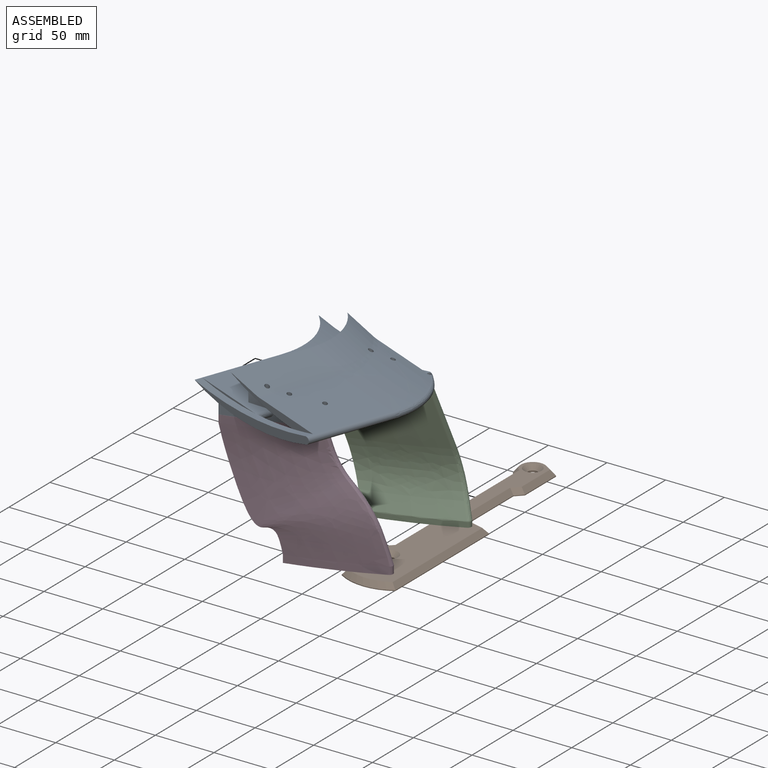
[diagram: assembled view]
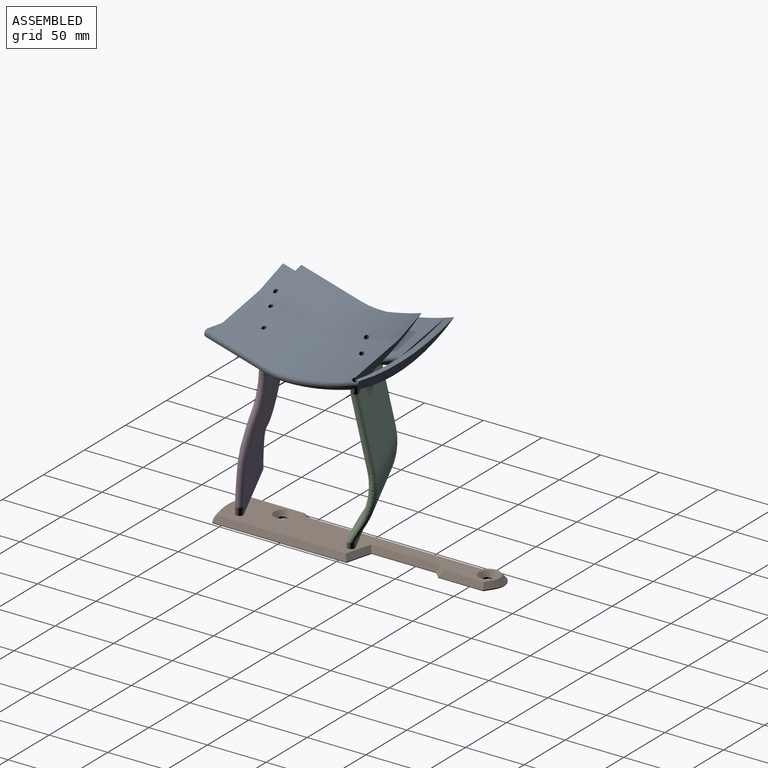
[diagram: assembled view, second angle]
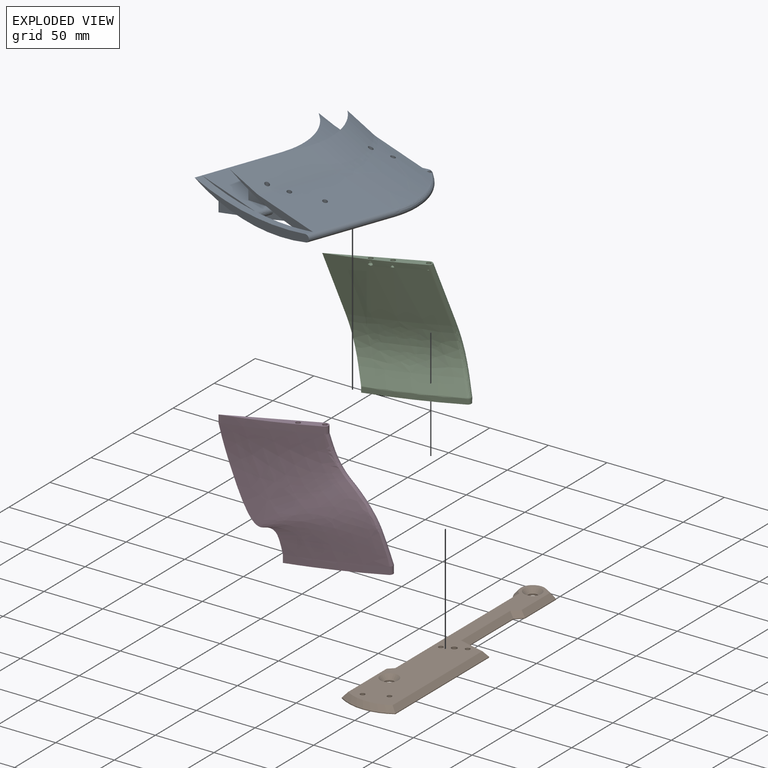
[diagram: exploded view]
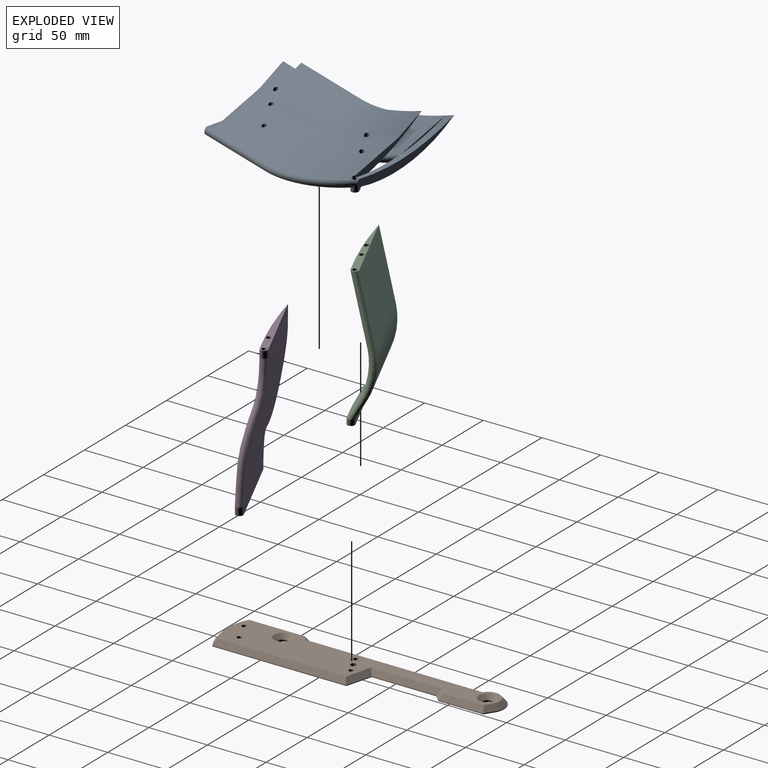
[diagram: exploded view, second angle]
ASSEMBLY  parts=4 mates=9
PART A: 59 faces, bbox 130.4x36.2x138.8 mm
  f0: bspline ~65.02x21.89mm, area 127.6mm2, adj f1,f24,f27,f32,f48
  f1: bspline ~65.02x64.14mm, area 134.3mm2, adj f0,f2,f48
  f2: plane 23.11x8.09mm, normal (0,0,1), area 17mm2, adj f1,f35,f48
  f3: plane 1.12x0.43mm, normal (0,0,1), area 0.2mm2, adj f8,f13,f14,f45
  f4: plane 72.09x27.29mm, normal (0,0,1), area 284.8mm2, adj f5,f6,f7,f8,f12,f45
  f5: bspline ~95.19x61.98mm, area 4944.9mm2, adj f4,f6,f19,f23,f37,f41,f42,f43
  f6: bspline ~61.98x42.99mm, area 1622.4mm2, adj f4,f5,f7,f20,f47
  f7: bspline ~61.98x23.76mm, area 269.6mm2, adj f4,f6,f8,f21,f47
  f8: bspline ~68.26x61.98mm, area 3128.2mm2, adj f3,f4,f7,f22,f23,f45,f46
  f9: bspline ~68.05x61.98mm, area 3126.1mm2, adj f10,f11,f16,f27,f30,f47
  f10: bspline ~34.02x23.21mm, area 190.2mm2, adj f9,f26,f30,f37,f43,f47,f54
  f11: bspline ~53.67x16.44mm, area 420.9mm2, adj f9,f28,f30,f41,f47,f55
  f12: bspline ~105.77x14.71mm, area 455.3mm2, adj f4,f14,f16,f37,f39,f40,f45
  f13: bspline ~1.13x0.42mm, area 0.1mm2, adj f3,f14,f45
  f14: bspline ~8.21x6.34mm, area 38mm2, adj f3,f12,f13,f23,f39,f42,f45
  f15: bspline ~7.9x4.38mm, area 0.4mm2, adj f39,f40,f42
  f16: plane 48.67x13.2mm, normal (0,0,1), area 53.9mm2, adj f9,f12
  f17: plane 76.34x27.31mm, normal (0,0,-1), area 288.7mm2, adj f19,f20,f21,f22,f34,f36
  f18: bspline ~65.02x21.21mm, area 700.8mm2, adj f19,f22,f23,f32,f36
  f19: bspline ~93.01x65.02mm, area 5052mm2, adj f5,f17,f18,f20,f32,f48,f49,f50
  f20: plane 65.49x41.28mm, normal (0.42,-0.9,-0.11), area 1674.7mm2, adj f6,f17,f19,f21,f56
  f21: bspline ~65.02x21.58mm, area 289.5mm2, adj f7,f17,f20,f22
  f22: plane 67.34x66.28mm, normal (0.26,-0.96,-0.07), area 3257.1mm2, adj f8,f17,f18,f21,f57,f58
  f23: bspline ~61.98x23.57mm, area 685.1mm2, adj f5,f8,f14,f18,f42
  f24: plane 0.55x0.12mm, normal (0,0,-1), area 0mm2, adj f0,f35
  f25: plane 48.67x13.2mm, normal (0,0,-1), area 53.8mm2, adj f27,f34
  f26: plane 0.55x0.12mm, normal (0,0,1), area 0mm2, adj f10,f40
  f27: plane 65.87x65.02mm, normal (0.26,-0.96,-0.07), area 3196.9mm2, adj f0,f9,f25,f28,f29,f48,f50,f53
  f28: bspline ~47.66x16.85mm, area 468.4mm2, adj f11,f27,f29,f50
  f29: bspline ~65.02x64.14mm, area 3069.2mm2, adj f27,f28,f30,f31,f50
  f30: bspline ~66.29x61.98mm, area 3101.5mm2, adj f9,f10,f11,f29,f38,f41,f43
  f31: plane 21.33x11.23mm, normal (0,0,1), area 16.5mm2, adj f29,f35,f50
  f32: plane 55.13x9.12mm, normal (0,0,1), area 297.5mm2, adj f0,f18,f19,f34,f35
  f33: plane 105x22.17mm, normal (0,0,-1), area 575.1mm2, adj f34,f35,f36
  f34: bspline ~102.39x14.71mm, area 631.1mm2, adj f17,f25,f32,f33,f35,f36
  f35: bspline ~103.88x21.93mm, area 652.9mm2, adj f2,f24,f31,f32,f33,f34,f36,f48
  f36: bspline ~6.68x6.13mm, area 63.7mm2, adj f17,f18,f33,f34,f35
  f37: plane 43.36x9.1mm, normal (0,0,-1), area 273mm2, adj f5,f10,f12,f40,f43
  f38: plane 46.74x19.11mm, normal (0,0,-1), area 36.4mm2, adj f30,f40
  f39: plane 105x22.15mm, normal (0,0,1), area 574.4mm2, adj f12,f14,f15,f40
  f40: bspline ~106.2x21.9mm, area 460.8mm2, adj f12,f15,f26,f37,f38,f39,f42,f43
  f41: cylinder r=406.4mm len=69.2mm, axis (0,-1,0), area 774.9mm2, adj f5,f11,f30,f42,f43,f44,f55
  f42: cylinder r=3.17mm len=6.14mm, axis (0,-1,0), area 41.3mm2, adj f5,f14,f15,f23,f40,f41,f43,f44
  f43: plane 67.17x39.28mm, normal (-0.5,0,0.87), area 731.6mm2, adj f5,f10,f30,f37,f40,f41,f42,f44
  f44: plane 70.75x38.53mm, normal (0,1,0), area 312.7mm2, adj f41,f42,f43,f45,f46,f47
  f45: cylinder r=1.98mm len=10.66mm, axis (0,1,0), area 119.4mm2, adj f3,f4,f8,f12,f13,f14,f44
  f46: cylinder r=1.98mm len=18.32mm, axis (0,1,0), area 228.1mm2, adj f8,f44
  f47: cylinder r=1.98mm len=24.89mm, axis (0,1,0), area 183.9mm2, adj f5,f6,f7,f9,f10,f11,f44,f54
  f48: cylinder r=406.4mm len=69.2mm, axis (0,-1,0), area 1055.4mm2, adj f0,f1,f2,f19,f27,f35,f49,f50
  f49: cylinder r=3.17mm len=10.65mm, axis (0,-1,0), area 98.1mm2, adj f19,f48,f50,f51
  f50: plane 66.5x38.61mm, normal (-0.5,0,0.87), area 1077.4mm2, adj f19,f27,f28,f29,f31,f35,f48,f49
  f51: plane 70.75x38.53mm, normal (0,1,0), area 312.7mm2, adj f48,f49,f50,f56,f57,f58
  f52: plane 0.02x0.01mm, normal (0,-1,0), area 0mm2, adj f35,f48,f50
  f53: plane 15.37x4.51mm, normal (-0.97,0,0.26), area 71.8mm2, adj f19,f27,f48,f50
  f54: extruded ~13.81x0.93mm, area 14.6mm2, adj f5,f10,f43,f47
  f55: extruded ~13.81x0.88mm, area 13.3mm2, adj f5,f11,f41,f47
  f56: cylinder r=1.98mm len=26.75mm, axis (0,1,0), area 321.6mm2, adj f20,f51
  f57: cylinder r=1.98mm len=21.58mm, axis (0,1,0), area 264.3mm2, adj f22,f51
  f58: cylinder r=1.98mm len=16.55mm, axis (0,1,0), area 201.7mm2, adj f22,f51
PART B: 33 faces, bbox 45.9x233.6x5.3 mm
  f0: plane 7.62x4.98mm, normal (0.55,0.84,0), area 5.8mm2, adj f1,f10,f11,f21
  f1: cylinder r=13.93mm len=24.1mm, axis (0,0,1), area 26.3mm2, adj f0,f2,f11,f23
  f2: plane 147.35x0.64mm, normal (-1,0,0), area 93.6mm2, adj f1,f3,f11,f25
  f3: plane 4.41x4.41mm, normal (-0.71,0.71,0), area 4mm2, adj f2,f4,f11,f27
  f4: plane 50.8x0.64mm, normal (-1,0,0), area 32.3mm2, adj f3,f5,f11,f26
  f5: cylinder r=42.26mm len=45.68mm, axis (0,0,1), area 30.6mm2, adj f4,f6,f11,f24
  f6: plane 114.3x0.64mm, normal (1,0,0), area 72.6mm2, adj f5,f7,f11,f22
  f7: plane 22.23x5.96mm, normal (0.26,0.97,0), area 14.6mm2, adj f6,f8,f11,f20
  f8: plane 55.34x0.64mm, normal (1,0,0), area 35.1mm2, adj f7,f9,f11,f18
  f9: plane 5.72x5.72mm, normal (0.71,-0.71,0), area 5.1mm2, adj f8,f10,f11,f17
  f10: plane 38.1x0.64mm, normal (1,0,0), area 24.2mm2, adj f0,f9,f11,f19
  f11: plane 233.36x45.68mm, normal (0,0,-1), area 7483.6mm2, adj f0,f1,f2,f3,f4,f5,f6,f7
  f12: plane 225.74x38.06mm, normal (0,0,1), area 5204.2mm2, adj f14,f16,f17,f18,f19,f20,f21,f22
  f13: cylinder r=3.98mm len=7.95mm, axis (0,0,1), area 36.8mm2, adj f11,f14
  f14: cone r=3.98mm half-angle=45deg, axis (0,0,1), area 185.2mm2, adj f12,f13
  f15: cylinder r=3.98mm len=7.95mm, axis (0,0,1), area 36.8mm2, adj f11,f16
  f16: cone r=3.98mm half-angle=45deg, axis (0,0,1), area 185.2mm2, adj f12,f15
  f17: plane 9.53x7.29mm, normal (0.54,-0.54,0.65), area 47.3mm2, adj f9,f12,f18,f19
  f18: plane 59.84x4.45mm, normal (0.76,0,0.65), area 337.2mm2, adj f8,f12,f17,f20
  f19: plane 38.1x4.45mm, normal (0.76,0,0.65), area 212.4mm2, adj f10,f12,f17,f21
  f20: plane 26.04x8.88mm, normal (0.2,0.73,0.65), area 134.7mm2, adj f7,f12,f18,f22
  f21: plane 9.7x7.04mm, normal (0.42,0.64,0.65), area 47.3mm2, adj f0,f12,f19,f23
  f22: plane 114.38x4.53mm, normal (0.76,0,0.65), area 654.4mm2, adj f6,f12,f20,f24
  f23: cone r=10.12mm half-angle=40.6deg, axis (0,0,-1), area 214mm2, adj f1,f12,f21,f25
  f24: cone r=38.45mm half-angle=40.6deg, axis (0,0,-1), area 257.4mm2, adj f5,f12,f22,f26
  f25: plane 150.97x4.67mm, normal (-0.76,0,0.65), area 872.4mm2, adj f2,f12,f23,f27
  f26: plane 50.88x4.53mm, normal (-0.76,0,0.65), area 286.6mm2, adj f4,f12,f24,f27
  f27: plane 8.22x5.99mm, normal (-0.54,0.54,0.65), area 36.5mm2, adj f3,f12,f25,f26
  f28: cylinder r=1.98mm len=5.08mm, axis (0,0,1), area 63.2mm2, adj f11,f12
  f29: cylinder r=1.98mm len=5.08mm, axis (0,0,1), area 63.2mm2, adj f11,f12
  f30: cylinder r=1.98mm len=5.08mm, axis (0,0,1), area 63.2mm2, adj f11,f12
  f31: cylinder r=1.98mm len=5.08mm, axis (0,0,1), area 63.2mm2, adj f11,f12
  f32: cylinder r=2.37mm len=5.08mm, axis (0,0,1), area 75.8mm2, adj f11,f12
PART C: 30 faces, bbox 116.3x128.3x30.1 mm
  f0: bspline ~95.96x73.6mm, area 4186mm2, adj f4,f7,f8,f9,f10,f11,f12,f13
  f1: bspline ~79.41x13.45mm, area 1044.2mm2, adj f2,f3,f4,f28,f29
  f2: bspline ~13.68x12.27mm, area 130.3mm2, adj f1,f3,f5,f24,f25,f26,f27
  f3: plane 79.37x11.82mm, normal (0,0.51,0.86), area 1048.9mm2, adj f1,f2,f6,f29
  f4: bspline ~86.1x36.8mm, area 2917.1mm2, adj f0,f1,f5,f6
  f5: bspline ~36.8x16.18mm, area 379mm2, adj f2,f4,f6,f7
  f6: bspline ~86.06x36.8mm, area 2909.2mm2, adj f3,f4,f5,f8
  f7: bspline ~52.53x20.92mm, area 541mm2, adj f0,f5,f8,f9
  f8: plane 90.28x52.53mm, normal (0,-0.27,0.96), area 4154mm2, adj f0,f6,f7,f9
  f9: plane 80.27x7.28mm, normal (0,-1,0), area 312.7mm2, adj f0,f7,f8,f11,f13,f15
  f10: cone r=0mm half-angle=59deg, axis (0,-1,0), area 11.2mm2, adj f0,f11
  f11: cylinder r=1.98mm len=4.76mm, axis (0,-1,0), area 51.6mm2, adj f0,f9,f10
  f12: cone r=0mm half-angle=59deg, axis (0,-1,0), area 13.6mm2, adj f0,f13
  f13: cylinder r=1.98mm len=4.76mm, axis (0,-1,0), area 57.2mm2, adj f0,f9,f12
  f14: cone r=0mm half-angle=59deg, axis (0,-1,0), area 14.3mm2, adj f0,f15
  f15: cylinder r=1.98mm len=4.76mm, axis (0,-1,0), area 59mm2, adj f0,f9,f14
  f16: cylinder r=406.4mm len=76.24mm, axis (0,-1,0), area 326.2mm2, adj f17,f18,f19,f26,f28,f29
  f17: plane 76.2x4.24mm, normal (0,0,1), area 322.8mm2, adj f16,f18,f19,f27,f29
  f18: cylinder r=3.17mm len=6.35mm, axis (0,-1,0), area 44.7mm2, adj f16,f17,f19,f24,f25
  f19: plane 79.38x6.38mm, normal (0,1,0), area 325mm2, adj f16,f17,f18,f21,f23
  f20: cone r=0mm half-angle=59deg, axis (0,1,0), area 14.4mm2, adj f21
  f21: cylinder r=1.98mm len=4.76mm, axis (0,1,0), area 59.3mm2, adj f19,f20
  f22: cone r=0mm half-angle=59deg, axis (0,1,0), area 14.4mm2, adj f23
  f23: cylinder r=1.98mm len=4.76mm, axis (0,1,0), area 59.3mm2, adj f19,f22
  f24: bspline ~4.48x3.22mm, area 5.1mm2, adj f2,f18,f26
  f25: bspline ~3.02x2.15mm, area 1.4mm2, adj f2,f18,f27
  f26: bspline ~1.02x0.53mm, area 0.2mm2, adj f2,f16,f24,f28
  f27: bspline ~1.02x0.8mm, area 0.1mm2, adj f2,f17,f25,f29
  f28: bspline ~78.61x6.81mm, area 75.8mm2, adj f1,f16,f26,f29
  f29: cylinder r=1.91mm len=76.2mm, axis (1,0,0), area 78.1mm2, adj f1,f3,f16,f17,f27,f28
PART D: 18 faces, bbox 116.2x106.4x54.6 mm
  f0: bspline ~111.46x93.68mm, area 7781.8mm2, adj f1,f4,f7
  f1: bspline ~116.25x93.68mm, area 8871.3mm2, adj f0,f2,f3,f6,f8
  f2: extruded ~69.2x32.62mm, area 486.5mm2, adj f1,f3,f4,f5
  f3: extruded ~6.35x5.91mm, area 63.1mm2, adj f1,f2,f4,f5
  f4: plane 65.99x38.1mm, normal (-0.5,0,0.87), area 483.9mm2, adj f0,f2,f3,f5
  f5: plane 70.76x38.53mm, normal (0,-1,0), area 325mm2, adj f2,f3,f4,f15,f17
  f6: extruded ~69.2x32.62mm, area 486.5mm2, adj f1,f7,f8,f9
  f7: plane 65.99x38.1mm, normal (-0.5,0,0.87), area 483.9mm2, adj f0,f6,f8,f9
  f8: extruded ~6.35x5.91mm, area 63.1mm2, adj f1,f6,f7,f9
  f9: plane 70.76x38.53mm, normal (0,1,0), area 325.1mm2, adj f6,f7,f8,f11,f13
  f10: cone r=0mm half-angle=59deg, axis (0,1,0), area 14.4mm2, adj f11
  f11: cylinder r=1.98mm len=4.76mm, axis (0,1,0), area 59.3mm2, adj f9,f10
  f12: cone r=0mm half-angle=59deg, axis (0,1,0), area 14.4mm2, adj f13
  f13: cylinder r=1.98mm len=4.76mm, axis (0,1,0), area 59.3mm2, adj f9,f12
  f14: cone r=0mm half-angle=59deg, axis (0,-1,0), area 14.4mm2, adj f15
  f15: cylinder r=1.98mm len=4.76mm, axis (0,-1,0), area 59.3mm2, adj f5,f14
  f16: cone r=0mm half-angle=59deg, axis (0,-1,0), area 14.4mm2, adj f17
  f17: cylinder r=1.98mm len=4.76mm, axis (0,-1,0), area 59.3mm2, adj f5,f16
PLACE A rot(axis=(-1,0.05,-0.05),90.1deg) t=(-23.56,-117.29,112.71)mm
PLACE B t=(-8.08,41.01,0)mm
PLACE C rot(axis=(-0.96,-0.21,0.21),92.6deg) t=(29.33,-19.27,4.76)mm
PLACE D rot(axis=(-1,0.05,-0.05),90.1deg) t=(-37.31,-82.96,6.35)mm
MATE cylindrical C.f22 <-> B.f31  axis (0,0,-1) through (9.46,24.01,0)mm
MATE planar B.f12 <-> C.f19  axis (0,0,1) through (0,0,0)mm
MATE cylindrical C.f20 <-> B.f30  axis (0,0,-1) through (-7.81,15.96,0)mm
MATE cylindrical B.f29 <-> D.f12  axis (0,0,1) through (9.46,-71.24,0)mm
MATE cylindrical C.f10 <-> A.f47  axis (0,0,1) through (-52.2,-5.87,106.36)mm
MATE planar B.f5 <-> D.f12  axis (0,0,1) through (0.83,-48.84,0)mm
MATE cylindrical A.f45 <-> C.f14  axis (0,0,-1) through (-14.35,10.62,106.36)mm
MATE planar A.f42 <-> C.f9  axis (0,0,-1) through (-14.37,10.62,106.36)mm
MATE cylindrical D.f10 <-> B.f28  axis (0,0,-1) through (-7.81,-79.29,0)mm
